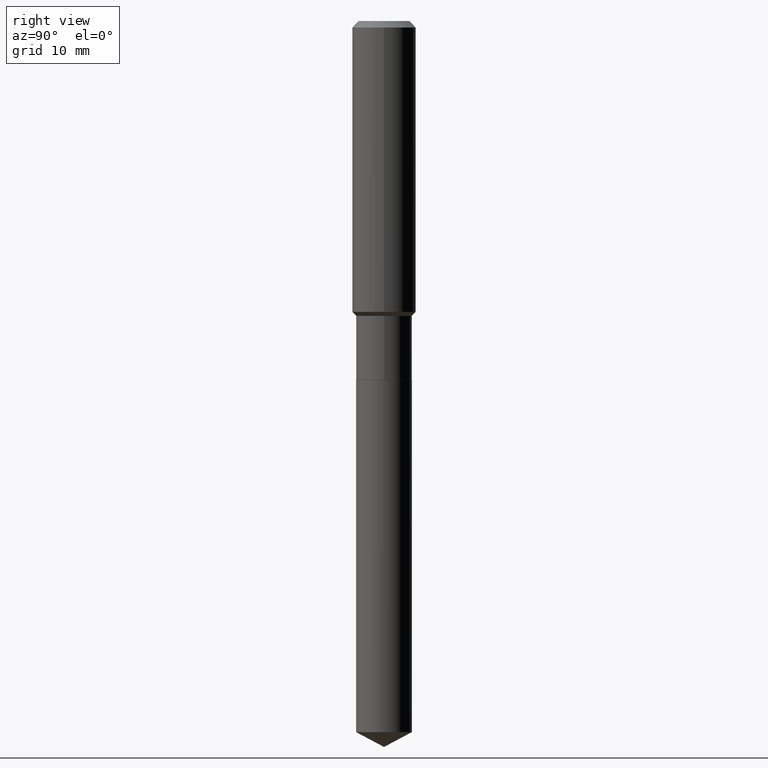
[diagram: clean part render]
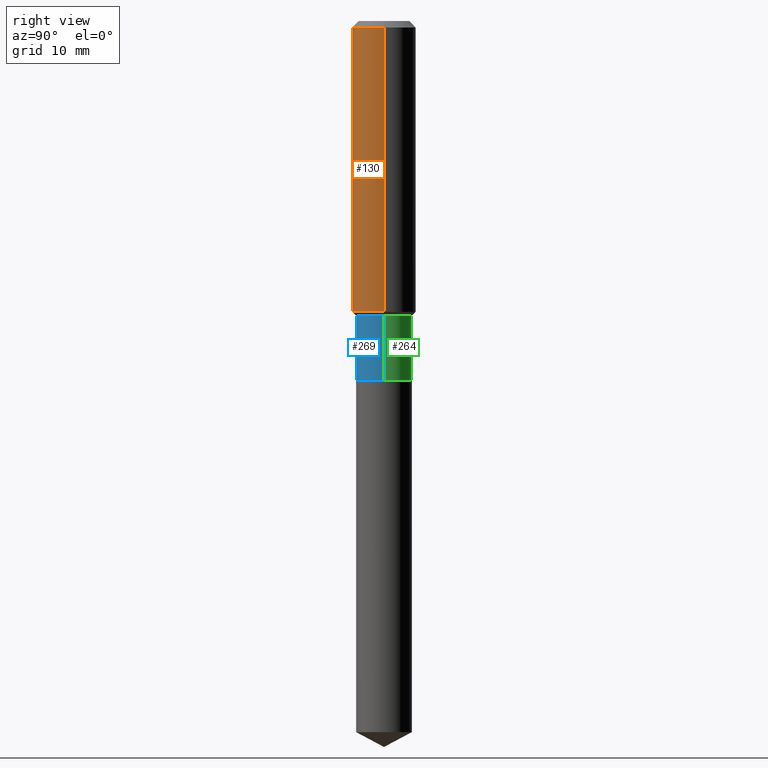
[diagram: same view with three faces highlighted in distinct colors, each labeled with its STEP entity id]
A machine part, right view with three faces highlighted in distinct colors.
Their STEP definitions:

[orange] entity #130 — the highlighted cylindrical surface (edge-blend (fillet) strip) has radius 4.0005 mm, axis along (-0, 0, 1).
#6 = VERTEX_POINT ( 'NONE', #266 ) ;
#14 = VERTEX_POINT ( 'NONE', #193 ) ;
#28 = VECTOR ( 'NONE', #206, 39.37007874015748143 ) ;
#35 = DIRECTION ( 'NONE',  ( -2.445468806185136597E-29, 3.491481338843145583E-15, 1.000000000000000000 ) ) ;
#38 = CARTESIAN_POINT ( 'NONE',  ( 0.000000000000000000, 0.000000000000000000, 0.000000000000000000 ) ) ;
#41 = CYLINDRICAL_SURFACE ( 'NONE', #196, 0.1575000000000000844 ) ;
#48 = CARTESIAN_POINT ( 'NONE',  ( -0.1575000000000000011, -1.441198456951520308E-15, -0.03150000000000019451 ) ) ;
#68 = LINE ( 'NONE', #315, #230 ) ;
#92 = AXIS2_PLACEMENT_3D ( 'NONE', #378, #179, #342 ) ;
#93 = LINE ( 'NONE', #173, #28 ) ;
#130 = ADVANCED_FACE ( 'NONE', ( #236 ), #41, .T. ) ;
#148 = DIRECTION ( 'NONE',  ( -2.445468806185136597E-29, 3.491481338843145583E-15, 1.000000000000000000 ) ) ;
#159 = CARTESIAN_POINT ( 'NONE',  ( 7.703226739483228723E-31, -1.099816621735597661E-16, -0.03150000000000019451 ) ) ;
#173 = CARTESIAN_POINT ( 'NONE',  ( 0.1575000000000000844, -1.099816621735587677E-15, 7.679978421878603638E-30 ) ) ;
#179 = DIRECTION ( 'NONE',  ( -2.445468806185136597E-29, 3.491481338843145583E-15, 1.000000000000000000 ) ) ;
#180 = ORIENTED_EDGE ( 'NONE', *, *, #390, .T. ) ;
#183 = EDGE_CURVE ( 'NONE', #14, #433, #93, .T. ) ;
#193 = CARTESIAN_POINT ( 'NONE',  ( 0.1575000000000001676, -6.110441491109385816E-15, -1.435100000000000042 ) ) ;
#196 = AXIS2_PLACEMENT_3D ( 'NONE', #38, #35, #323 ) ;
#206 = DIRECTION ( 'NONE',  ( -2.445468806185136877E-29, 3.491481338843145188E-15, 1.000000000000000000 ) ) ;
#218 = VERTEX_POINT ( 'NONE', #48 ) ;
#229 = DIRECTION ( 'NONE',  ( 1.000000000000000000, -6.982962677686265922E-15, 0.000000000000000000 ) ) ;
#230 = VECTOR ( 'NONE', #449, 39.37007874015748143 ) ;
#235 = EDGE_CURVE ( 'NONE', #6, #218, #68, .T. ) ;
#236 = FACE_OUTER_BOUND ( 'NONE', #401, .T. ) ;
#244 = AXIS2_PLACEMENT_3D ( 'NONE', #159, #148, #229 ) ;
#261 = ORIENTED_EDGE ( 'NONE', *, *, #426, .F. ) ;
#266 = CARTESIAN_POINT ( 'NONE',  ( -0.1575000000000001676, -3.891520060551639155E-15, -1.435100000000000042 ) ) ;
#288 = ORIENTED_EDGE ( 'NONE', *, *, #183, .T. ) ;
#311 = CIRCLE ( 'NONE', #92, 0.1575000000000001676 ) ;
#315 = CARTESIAN_POINT ( 'NONE',  ( -0.1575000000000000844, 1.119104808822158392E-15, -7.747322767151481189E-30 ) ) ;
#318 = ORIENTED_EDGE ( 'NONE', *, *, #235, .F. ) ;
#323 = DIRECTION ( 'NONE',  ( 1.000000000000000000, -6.982962677686267499E-15, 4.876176775795936353E-29 ) ) ;
#342 = DIRECTION ( 'NONE',  ( 1.000000000000000000, -6.982962677686267499E-15, 0.000000000000000000 ) ) ;
#378 = CARTESIAN_POINT ( 'NONE',  ( 3.509492283756289196E-29, -5.010624869373797547E-15, -1.435100000000000042 ) ) ;
#390 = EDGE_CURVE ( 'NONE', #6, #14, #311, .T. ) ;
#401 = EDGE_LOOP ( 'NONE', ( #318, #180, #288, #261 ) ) ;
#426 = EDGE_CURVE ( 'NONE', #218, #433, #454, .T. ) ;
#433 = VERTEX_POINT ( 'NONE', #487 ) ;
#449 = DIRECTION ( 'NONE',  ( -2.445468806185136877E-29, 3.491481338843145188E-15, 1.000000000000000000 ) ) ;
#454 = CIRCLE ( 'NONE', #244, 0.1575000000000000011 ) ;
#487 = CARTESIAN_POINT ( 'NONE',  ( 0.1575000000000000011, -1.209798283909146741E-15, -0.03150000000000019451 ) ) ;

[blue] entity #269 — the highlighted cylindrical surface (edge-blend (fillet) strip) has radius 3.5001 mm, axis along (-0, 0, 1).
#11 = VERTEX_POINT ( 'NONE', #379 ) ;
#22 = CARTESIAN_POINT ( 'NONE',  ( -0.1377999999999999781, -4.652631509676577044E-15, -1.454800000000000093 ) ) ;
#31 = DIRECTION ( 'NONE',  ( 1.000000000000000000, -6.982962677686267499E-15, 0.000000000000000000 ) ) ;
#62 = ORIENTED_EDGE ( 'NONE', *, *, #432, .F. ) ;
#63 = AXIS2_PLACEMENT_3D ( 'NONE', #273, #232, #31 ) ;
#73 = VECTOR ( 'NONE', #490, 39.37007874015748143 ) ;
#76 = CARTESIAN_POINT ( 'NONE',  ( 0.1377999999999999781, -6.041659308734175420E-15, -1.454800000000000093 ) ) ;
#79 = CIRCLE ( 'NONE', #488, 0.1378000000000000058 ) ;
#82 = EDGE_CURVE ( 'NONE', #331, #444, #283, .T. ) ;
#122 = CYLINDRICAL_SURFACE ( 'NONE', #163, 0.1378000000000000058 ) ;
#163 = AXIS2_PLACEMENT_3D ( 'NONE', #164, #338, #199 ) ;
#164 = CARTESIAN_POINT ( 'NONE',  ( 0.000000000000000000, 0.000000000000000000, 0.000000000000000000 ) ) ;
#199 = DIRECTION ( 'NONE',  ( 1.000000000000000000, -6.982962677686265922E-15, 4.876176775795934672E-29 ) ) ;
#231 = ORIENTED_EDGE ( 'NONE', *, *, #82, .F. ) ;
#232 = DIRECTION ( 'NONE',  ( -2.445468806185136597E-29, 3.491481338843145583E-15, 1.000000000000000000 ) ) ;
#258 = ORIENTED_EDGE ( 'NONE', *, *, #310, .T. ) ;
#269 = ADVANCED_FACE ( 'NONE', ( #330 ), #122, .T. ) ;
#273 = CARTESIAN_POINT ( 'NONE',  ( 3.557668019238137054E-29, -5.079407051749007943E-15, -1.454800000000000093 ) ) ;
#282 = EDGE_CURVE ( 'NONE', #11, #444, #328, .T. ) ;
#283 = CIRCLE ( 'NONE', #63, 0.1377999999999999781 ) ;
#286 = CARTESIAN_POINT ( 'NONE',  ( 0.1378000000000000058, -9.622522569851674770E-16, 6.719371597046798536E-30 ) ) ;
#310 = EDGE_CURVE ( 'NONE', #466, #11, #79, .T. ) ;
#314 = LINE ( 'NONE', #455, #417 ) ;
#322 = CARTESIAN_POINT ( 'NONE',  ( -0.1378000000000000336, -4.652631509676577044E-15, -1.771200000000000552 ) ) ;
#328 = LINE ( 'NONE', #286, #73 ) ;
#330 = FACE_OUTER_BOUND ( 'NONE', #436, .T. ) ;
#331 = VERTEX_POINT ( 'NONE', #22 ) ;
#335 = ORIENTED_EDGE ( 'NONE', *, *, #282, .T. ) ;
#338 = DIRECTION ( 'NONE',  ( -2.445468806185136597E-29, 3.491481338843145583E-15, 1.000000000000000000 ) ) ;
#357 = DIRECTION ( 'NONE',  ( -2.445468806185136597E-29, 3.491481338843145583E-15, 1.000000000000000000 ) ) ;
#379 = CARTESIAN_POINT ( 'NONE',  ( 0.1378000000000000058, -7.146364004344149421E-15, -1.771200000000000552 ) ) ;
#417 = VECTOR ( 'NONE', #448, 39.37007874015748143 ) ;
#423 = CARTESIAN_POINT ( 'NONE',  ( 4.331414349515115307E-29, -6.184111747358981944E-15, -1.771200000000000552 ) ) ;
#432 = EDGE_CURVE ( 'NONE', #466, #331, #314, .T. ) ;
#436 = EDGE_LOOP ( 'NONE', ( #62, #258, #335, #231 ) ) ;
#444 = VERTEX_POINT ( 'NONE', #76 ) ;
#448 = DIRECTION ( 'NONE',  ( -2.445468806185136877E-29, 3.491481338843145188E-15, 1.000000000000000000 ) ) ;
#455 = CARTESIAN_POINT ( 'NONE',  ( -0.1378000000000000058, 9.791278898774180975E-16, -6.778292554371260034E-30 ) ) ;
#460 = DIRECTION ( 'NONE',  ( 1.000000000000000000, -6.982962677686265922E-15, 0.000000000000000000 ) ) ;
#466 = VERTEX_POINT ( 'NONE', #322 ) ;
#488 = AXIS2_PLACEMENT_3D ( 'NONE', #423, #357, #460 ) ;
#490 = DIRECTION ( 'NONE',  ( -2.445468806185136877E-29, 3.491481338843145188E-15, 1.000000000000000000 ) ) ;

[green] entity #264 — the highlighted cylindrical surface (edge-blend (fillet) strip) has radius 3.5001 mm, axis along (-0, 0, 1).
#11 = VERTEX_POINT ( 'NONE', #379 ) ;
#22 = CARTESIAN_POINT ( 'NONE',  ( -0.1377999999999999781, -4.652631509676577044E-15, -1.454800000000000093 ) ) ;
#40 = CARTESIAN_POINT ( 'NONE',  ( 0.000000000000000000, 0.000000000000000000, 0.000000000000000000 ) ) ;
#46 = ORIENTED_EDGE ( 'NONE', *, *, #456, .F. ) ;
#65 = DIRECTION ( 'NONE',  ( -2.445468806185136597E-29, 3.491481338843145583E-15, 1.000000000000000000 ) ) ;
#73 = VECTOR ( 'NONE', #490, 39.37007874015748143 ) ;
#74 = EDGE_CURVE ( 'NONE', #11, #466, #289, .T. ) ;
#76 = CARTESIAN_POINT ( 'NONE',  ( 0.1377999999999999781, -6.041659308734175420E-15, -1.454800000000000093 ) ) ;
#98 = EDGE_LOOP ( 'NONE', ( #399, #346, #46, #263 ) ) ;
#104 = DIRECTION ( 'NONE',  ( -2.445468806185136597E-29, 3.491481338843145583E-15, 1.000000000000000000 ) ) ;
#118 = DIRECTION ( 'NONE',  ( -2.445468806185136597E-29, 3.491481338843145583E-15, 1.000000000000000000 ) ) ;
#121 = CIRCLE ( 'NONE', #190, 0.1377999999999999781 ) ;
#135 = AXIS2_PLACEMENT_3D ( 'NONE', #316, #65, #312 ) ;
#145 = AXIS2_PLACEMENT_3D ( 'NONE', #40, #118, #358 ) ;
#151 = CARTESIAN_POINT ( 'NONE',  ( 3.557668019238137054E-29, -5.079407051749007943E-15, -1.454800000000000093 ) ) ;
#190 = AXIS2_PLACEMENT_3D ( 'NONE', #151, #104, #353 ) ;
#251 = CYLINDRICAL_SURFACE ( 'NONE', #145, 0.1378000000000000058 ) ;
#260 = FACE_OUTER_BOUND ( 'NONE', #98, .T. ) ;
#263 = ORIENTED_EDGE ( 'NONE', *, *, #282, .F. ) ;
#264 = ADVANCED_FACE ( 'NONE', ( #260 ), #251, .T. ) ;
#282 = EDGE_CURVE ( 'NONE', #11, #444, #328, .T. ) ;
#286 = CARTESIAN_POINT ( 'NONE',  ( 0.1378000000000000058, -9.622522569851674770E-16, 6.719371597046798536E-30 ) ) ;
#289 = CIRCLE ( 'NONE', #135, 0.1378000000000000058 ) ;
#312 = DIRECTION ( 'NONE',  ( 1.000000000000000000, -6.982962677686265922E-15, 0.000000000000000000 ) ) ;
#314 = LINE ( 'NONE', #455, #417 ) ;
#316 = CARTESIAN_POINT ( 'NONE',  ( 4.331414349515115307E-29, -6.184111747358981944E-15, -1.771200000000000552 ) ) ;
#322 = CARTESIAN_POINT ( 'NONE',  ( -0.1378000000000000336, -4.652631509676577044E-15, -1.771200000000000552 ) ) ;
#328 = LINE ( 'NONE', #286, #73 ) ;
#331 = VERTEX_POINT ( 'NONE', #22 ) ;
#346 = ORIENTED_EDGE ( 'NONE', *, *, #432, .T. ) ;
#353 = DIRECTION ( 'NONE',  ( 1.000000000000000000, -6.982962677686267499E-15, 0.000000000000000000 ) ) ;
#358 = DIRECTION ( 'NONE',  ( 1.000000000000000000, -6.982962677686265922E-15, 4.876176775795934672E-29 ) ) ;
#379 = CARTESIAN_POINT ( 'NONE',  ( 0.1378000000000000058, -7.146364004344149421E-15, -1.771200000000000552 ) ) ;
#399 = ORIENTED_EDGE ( 'NONE', *, *, #74, .T. ) ;
#417 = VECTOR ( 'NONE', #448, 39.37007874015748143 ) ;
#432 = EDGE_CURVE ( 'NONE', #466, #331, #314, .T. ) ;
#444 = VERTEX_POINT ( 'NONE', #76 ) ;
#448 = DIRECTION ( 'NONE',  ( -2.445468806185136877E-29, 3.491481338843145188E-15, 1.000000000000000000 ) ) ;
#455 = CARTESIAN_POINT ( 'NONE',  ( -0.1378000000000000058, 9.791278898774180975E-16, -6.778292554371260034E-30 ) ) ;
#456 = EDGE_CURVE ( 'NONE', #444, #331, #121, .T. ) ;
#466 = VERTEX_POINT ( 'NONE', #322 ) ;
#490 = DIRECTION ( 'NONE',  ( -2.445468806185136877E-29, 3.491481338843145188E-15, 1.000000000000000000 ) ) ;